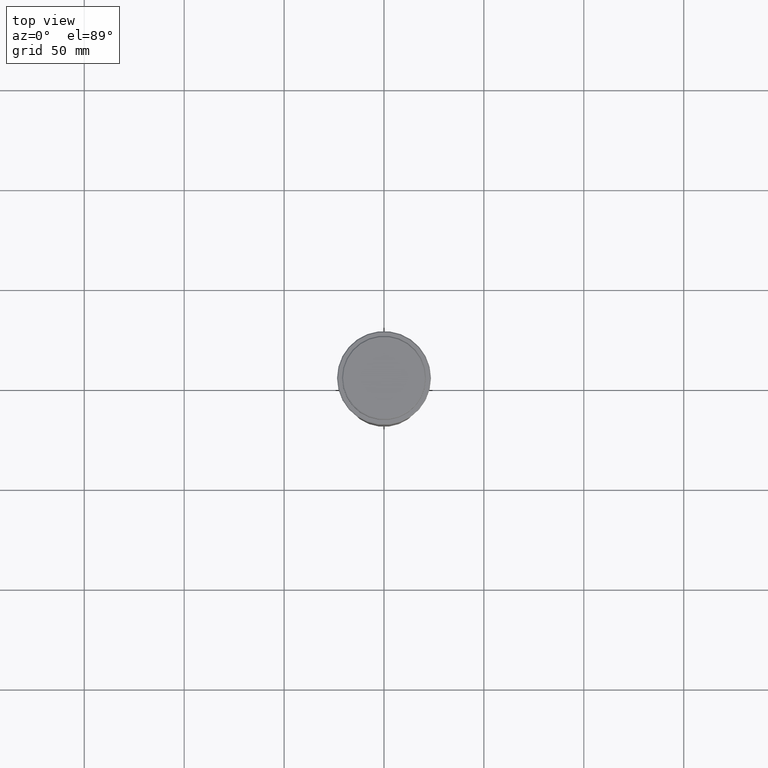
[diagram: clean part render]
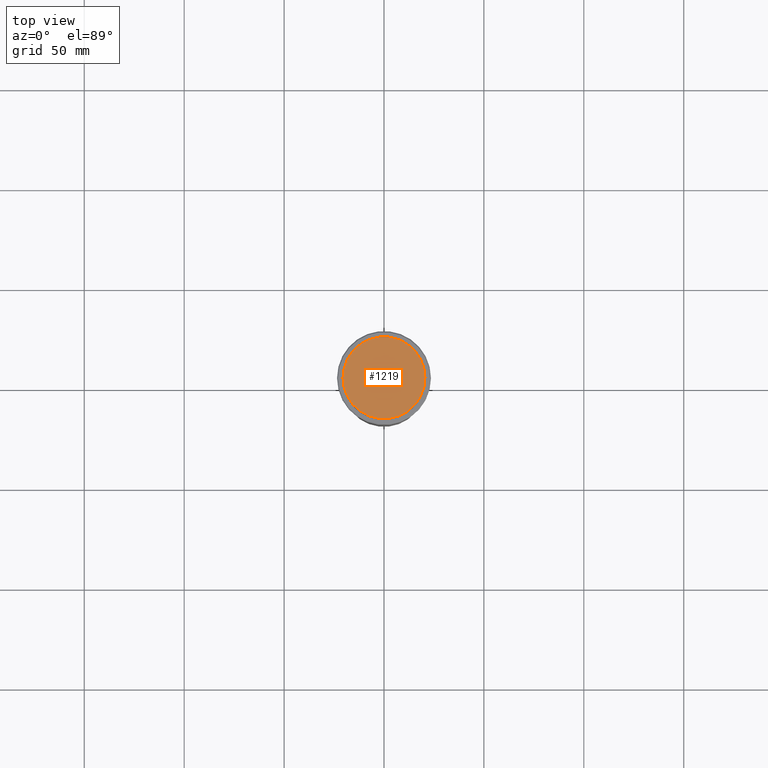
[diagram: same view with one face highlighted and labeled with its STEP entity id]
A machine part, top view. The second image highlights one B-rep face of the part: STEP entity #1219.
In plain terms, the highlighted planar face has unit normal (0, -0, 1).
Its self-contained STEP definition (entity closure, byte-faithful):
#74 = CIRCLE ( 'NONE', #295, 20.50000000000007461 ) ;
#103 = VERTEX_POINT ( 'NONE', #1143 ) ;
#137 = ORIENTED_EDGE ( 'NONE', *, *, #707, .T. ) ;
#215 = CARTESIAN_POINT ( 'NONE',  ( 0.000000000000000000, 0.000000000000000000, 0.000000000000000000 ) ) ;
#295 = AXIS2_PLACEMENT_3D ( 'NONE', #359, #478, #794 ) ;
#328 = PLANE ( 'NONE',  #595 ) ;
#359 = CARTESIAN_POINT ( 'NONE',  ( 0.000000000000000000, 0.000000000000000000, 0.000000000000000000 ) ) ;
#478 = DIRECTION ( 'NONE',  ( -0.000000000000000000, -0.000000000000000000, 1.000000000000000000 ) ) ;
#543 = CARTESIAN_POINT ( 'NONE',  ( 0.000000000000000000, 0.000000000000000000, 0.000000000000000000 ) ) ;
#595 = AXIS2_PLACEMENT_3D ( 'NONE', #543, #1103, #981 ) ;
#669 = DIRECTION ( 'NONE',  ( 1.000000000000000000, 0.000000000000000000, 0.000000000000000000 ) ) ;
#707 = EDGE_CURVE ( 'NONE', #1084, #103, #74, .T. ) ;
#793 = EDGE_LOOP ( 'NONE', ( #137, #1411 ) ) ;
#794 = DIRECTION ( 'NONE',  ( 1.000000000000000000, 0.000000000000000000, 0.000000000000000000 ) ) ;
#839 = CARTESIAN_POINT ( 'NONE',  ( -20.50000000000007461, 0.000000000000000000, 0.000000000000000000 ) ) ;
#844 = EDGE_CURVE ( 'NONE', #103, #1084, #1280, .T. ) ;
#981 = DIRECTION ( 'NONE',  ( 1.000000000000000000, 0.000000000000000000, 0.000000000000000000 ) ) ;
#1036 = AXIS2_PLACEMENT_3D ( 'NONE', #215, #1204, #669 ) ;
#1084 = VERTEX_POINT ( 'NONE', #839 ) ;
#1088 = FACE_OUTER_BOUND ( 'NONE', #793, .T. ) ;
#1103 = DIRECTION ( 'NONE',  ( 0.000000000000000000, -0.000000000000000000, 1.000000000000000000 ) ) ;
#1143 = CARTESIAN_POINT ( 'NONE',  ( 20.50000000000007461, 2.541142108230762213E-15, 0.000000000000000000 ) ) ;
#1204 = DIRECTION ( 'NONE',  ( -0.000000000000000000, -0.000000000000000000, 1.000000000000000000 ) ) ;
#1219 = ADVANCED_FACE ( 'NONE', ( #1088 ), #328, .T. ) ;
#1280 = CIRCLE ( 'NONE', #1036, 20.50000000000007461 ) ;
#1411 = ORIENTED_EDGE ( 'NONE', *, *, #844, .T. ) ;